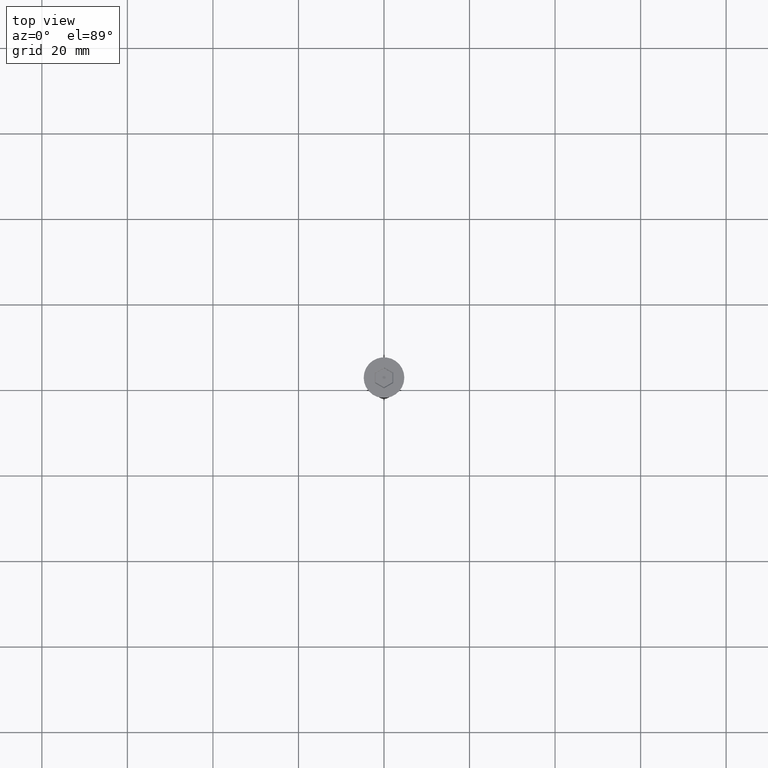
[diagram: clean part render]
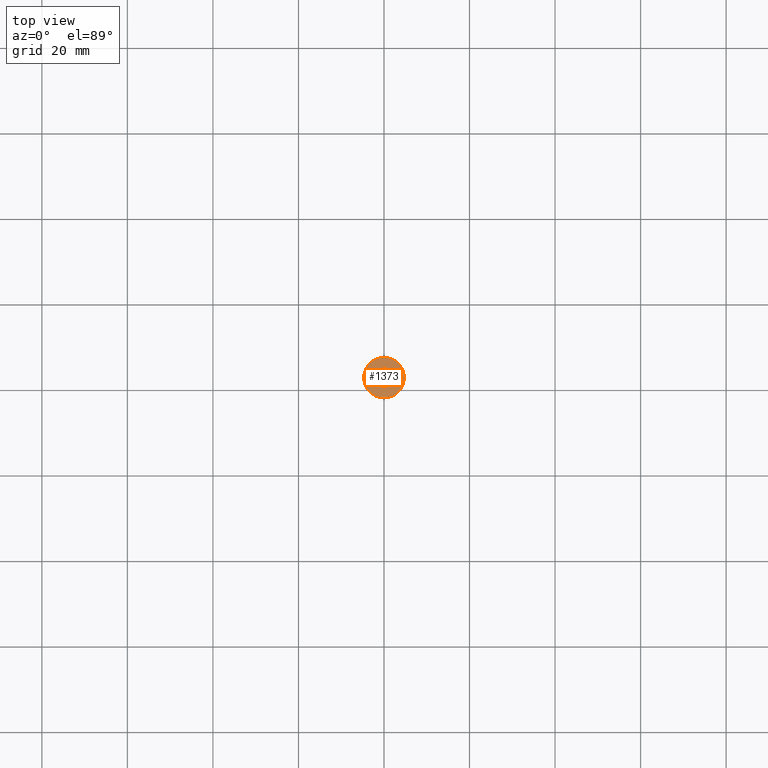
[diagram: same view with one face highlighted and labeled with its STEP entity id]
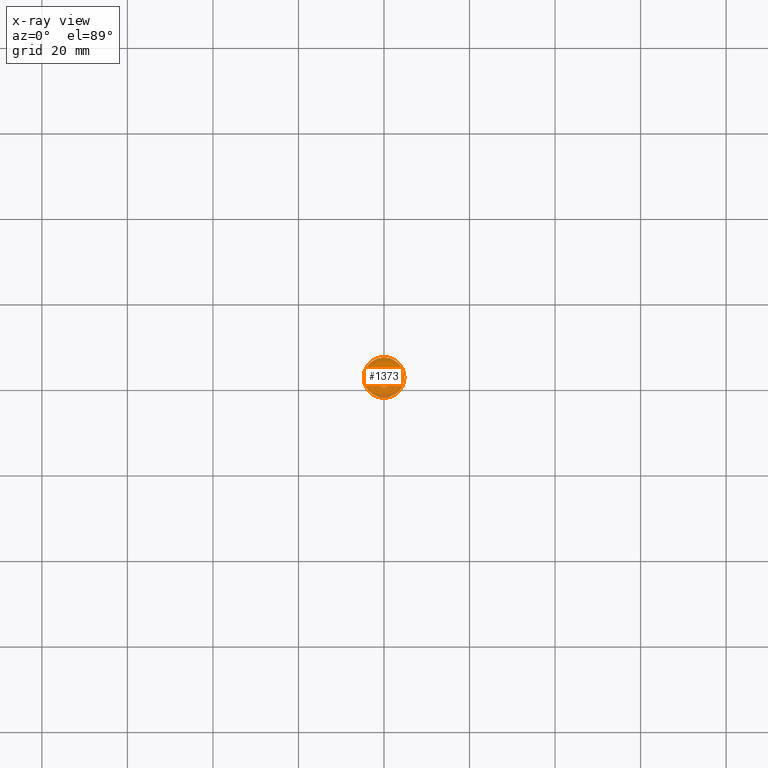
[diagram: x-ray of the same camera — body ghosted, the highlighted face saturated]
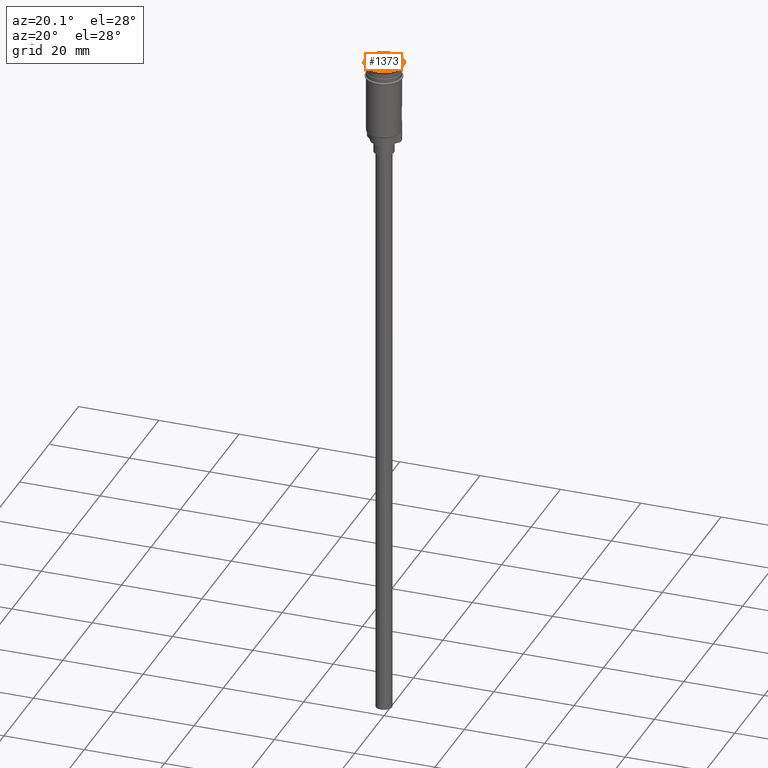
[diagram: same view with one face highlighted and labeled with its STEP entity id]
A machine part, top view. The second image highlights one B-rep face of the part: STEP entity #1373.
The next image is the same camera in x-ray: the body ghosted, the highlighted face saturated — about 0% of this face is hidden behind the body in this view.
A second angle (auxiliary view) of the same face is appended — the face is thin or edge-on in the first view.
In plain terms, the highlighted planar face has unit normal (0, -0, 1).
Its self-contained STEP definition (entity closure, byte-faithful):
#23 = EDGE_CURVE ( 'NONE', #1105, #285, #689, .T. ) ;
#28 = CARTESIAN_POINT ( 'NONE',  ( -4.750000000000000000, 5.817072295949927426E-16, 0.000000000000000000 ) ) ;
#52 = ORIENTED_EDGE ( 'NONE', *, *, #1480, .T. ) ;
#68 = EDGE_LOOP ( 'NONE', ( #1061, #777, #52, #379, #1450, #531 ) ) ;
#198 = DIRECTION ( 'NONE',  ( 1.000000000000000000, 0.000000000000000000, 0.000000000000000000 ) ) ;
#209 = CARTESIAN_POINT ( 'NONE',  ( -2.049999999999997602, -1.299038105676652011, 0.000000000000000000 ) ) ;
#213 = CARTESIAN_POINT ( 'NONE',  ( -2.149999999999994138, 1.241303078757690859, 0.000000000000000000 ) ) ;
#218 = FACE_BOUND ( 'NONE', #68, .T. ) ;
#249 = CARTESIAN_POINT ( 'NONE',  ( -6.517717499969021618E-16, -2.482606157515383050, 0.000000000000000000 ) ) ;
#277 = CARTESIAN_POINT ( 'NONE',  ( -2.149999999999994138, 1.125833024919770109, 0.000000000000000000 ) ) ;
#285 = VERTEX_POINT ( 'NONE', #249 ) ;
#298 = DIRECTION ( 'NONE',  ( -1.926044357355332218E-16, -1.000000000000000000, 0.000000000000000000 ) ) ;
#310 = VERTEX_POINT ( 'NONE', #28 ) ;
#313 = DIRECTION ( 'NONE',  ( 0.000000000000000000, -0.000000000000000000, 1.000000000000000000 ) ) ;
#329 = VECTOR ( 'NONE', #298, 1000.000000000000000 ) ;
#372 = AXIS2_PLACEMENT_3D ( 'NONE', #857, #1368, #1455 ) ;
#379 = ORIENTED_EDGE ( 'NONE', *, *, #856, .T. ) ;
#413 = DIRECTION ( 'NONE',  ( 9.630221786776664787E-17, 1.000000000000000000, 0.000000000000000000 ) ) ;
#414 = EDGE_CURVE ( 'NONE', #285, #1267, #1421, .T. ) ;
#415 = CARTESIAN_POINT ( 'NONE',  ( 2.049999999999996714, 1.299038105676652455, 0.000000000000000000 ) ) ;
#441 = DIRECTION ( 'NONE',  ( -0.8660254037844385966, 0.5000000000000001110, 0.000000000000000000 ) ) ;
#444 = CARTESIAN_POINT ( 'NONE',  ( 0.09999999999999617528, -2.424871130596422564, 0.000000000000000000 ) ) ;
#464 = CARTESIAN_POINT ( 'NONE',  ( 3.890099324841783067E-16, 2.482606157515383494, 0.000000000000000000 ) ) ;
#469 = EDGE_CURVE ( 'NONE', #596, #1105, #1064, .T. ) ;
#508 = DIRECTION ( 'NONE',  ( -0.000000000000000000, -0.000000000000000000, 1.000000000000000000 ) ) ;
#531 = ORIENTED_EDGE ( 'NONE', *, *, #23, .T. ) ;
#566 = DIRECTION ( 'NONE',  ( -0.8660254037844387076, -0.4999999999999998335, 0.000000000000000000 ) ) ;
#568 = LINE ( 'NONE', #277, #975 ) ;
#576 = CARTESIAN_POINT ( 'NONE',  ( 2.149999999999993250, 1.241303078757691969, 0.000000000000000000 ) ) ;
#596 = VERTEX_POINT ( 'NONE', #576 ) ;
#623 = DIRECTION ( 'NONE',  ( 0.8660254037844385966, 0.5000000000000002220, 0.000000000000000000 ) ) ;
#652 = EDGE_CURVE ( 'NONE', #310, #790, #1585, .T. ) ;
#656 = VERTEX_POINT ( 'NONE', #464 ) ;
#659 = LINE ( 'NONE', #415, #955 ) ;
#689 = LINE ( 'NONE', #444, #1281 ) ;
#691 = CIRCLE ( 'NONE', #1198, 4.750000000000000000 ) ;
#702 = CARTESIAN_POINT ( 'NONE',  ( -2.149999999999994582, -1.241303078757691303, 0.000000000000000000 ) ) ;
#745 = VECTOR ( 'NONE', #623, 999.9999999999998863 ) ;
#768 = DIRECTION ( 'NONE',  ( 1.000000000000000000, 0.000000000000000000, 0.000000000000000000 ) ) ;
#775 = CARTESIAN_POINT ( 'NONE',  ( 2.149999999999992806, -1.241303078757692413, 0.000000000000000000 ) ) ;
#777 = ORIENTED_EDGE ( 'NONE', *, *, #1085, .T. ) ;
#790 = VERTEX_POINT ( 'NONE', #985 ) ;
#845 = LINE ( 'NONE', #1495, #745 ) ;
#856 = EDGE_CURVE ( 'NONE', #656, #596, #659, .T. ) ;
#857 = CARTESIAN_POINT ( 'NONE',  ( 0.000000000000000000, 0.000000000000000000, 0.000000000000000000 ) ) ;
#887 = CARTESIAN_POINT ( 'NONE',  ( 0.000000000000000000, 0.000000000000000000, 0.000000000000000000 ) ) ;
#892 = ORIENTED_EDGE ( 'NONE', *, *, #1242, .T. ) ;
#925 = PLANE ( 'NONE',  #1428 ) ;
#955 = VECTOR ( 'NONE', #1051, 1000.000000000000114 ) ;
#960 = EDGE_LOOP ( 'NONE', ( #892, #1489 ) ) ;
#974 = VERTEX_POINT ( 'NONE', #213 ) ;
#975 = VECTOR ( 'NONE', #413, 1000.000000000000000 ) ;
#985 = CARTESIAN_POINT ( 'NONE',  ( 4.750000000000000000, 0.000000000000000000, 0.000000000000000000 ) ) ;
#1051 = DIRECTION ( 'NONE',  ( 0.8660254037844385966, -0.5000000000000001110, 0.000000000000000000 ) ) ;
#1058 = FACE_OUTER_BOUND ( 'NONE', #960, .T. ) ;
#1061 = ORIENTED_EDGE ( 'NONE', *, *, #414, .T. ) ;
#1064 = LINE ( 'NONE', #1322, #329 ) ;
#1085 = EDGE_CURVE ( 'NONE', #1267, #974, #568, .T. ) ;
#1105 = VERTEX_POINT ( 'NONE', #775 ) ;
#1198 = AXIS2_PLACEMENT_3D ( 'NONE', #887, #508, #768 ) ;
#1242 = EDGE_CURVE ( 'NONE', #790, #310, #691, .T. ) ;
#1267 = VERTEX_POINT ( 'NONE', #702 ) ;
#1281 = VECTOR ( 'NONE', #566, 1000.000000000000000 ) ;
#1322 = CARTESIAN_POINT ( 'NONE',  ( 2.149999999999992806, -1.125833024919770331, 0.000000000000000000 ) ) ;
#1368 = DIRECTION ( 'NONE',  ( -0.000000000000000000, -0.000000000000000000, 1.000000000000000000 ) ) ;
#1373 = ADVANCED_FACE ( 'NONE', ( #218, #1058 ), #925, .T. ) ;
#1421 = LINE ( 'NONE', #209, #1563 ) ;
#1428 = AXIS2_PLACEMENT_3D ( 'NONE', #1437, #313, #198 ) ;
#1437 = CARTESIAN_POINT ( 'NONE',  ( 0.000000000000000000, 0.000000000000000000, 0.000000000000000000 ) ) ;
#1450 = ORIENTED_EDGE ( 'NONE', *, *, #469, .T. ) ;
#1455 = DIRECTION ( 'NONE',  ( 1.000000000000000000, 0.000000000000000000, 0.000000000000000000 ) ) ;
#1480 = EDGE_CURVE ( 'NONE', #974, #656, #845, .T. ) ;
#1489 = ORIENTED_EDGE ( 'NONE', *, *, #652, .T. ) ;
#1495 = CARTESIAN_POINT ( 'NONE',  ( -0.09999999999999692468, 2.424871130596422564, 0.000000000000000000 ) ) ;
#1563 = VECTOR ( 'NONE', #441, 1000.000000000000114 ) ;
#1585 = CIRCLE ( 'NONE', #372, 4.750000000000000000 ) ;